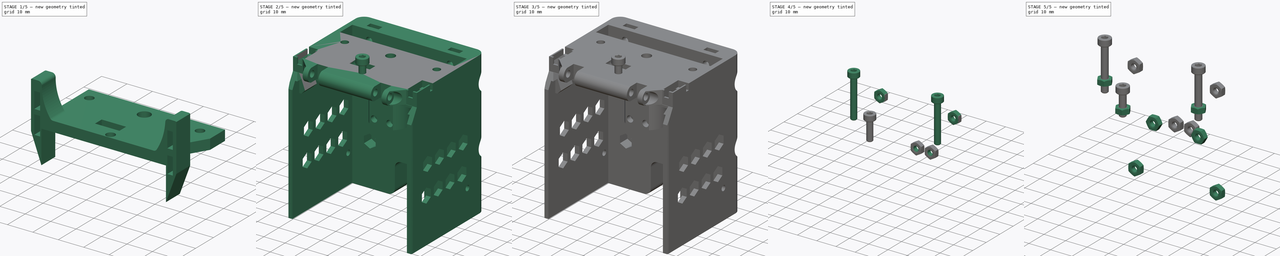
[diagram: build sequence overview — one tinted view per stage of 5, left to right]
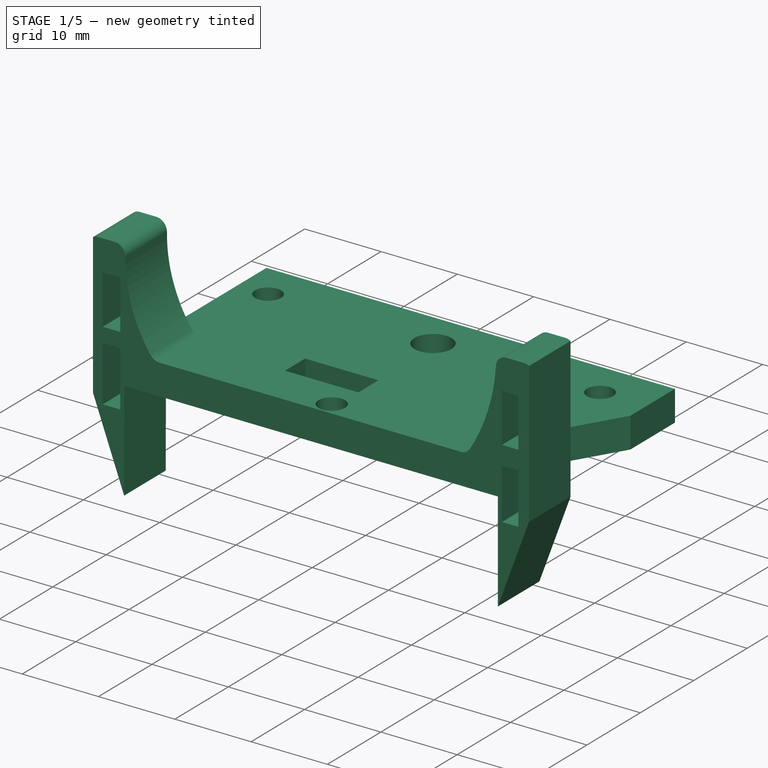
[diagram: stage 1 of 5 — iso view after this stage's code; geometry added in this stage tinted green]
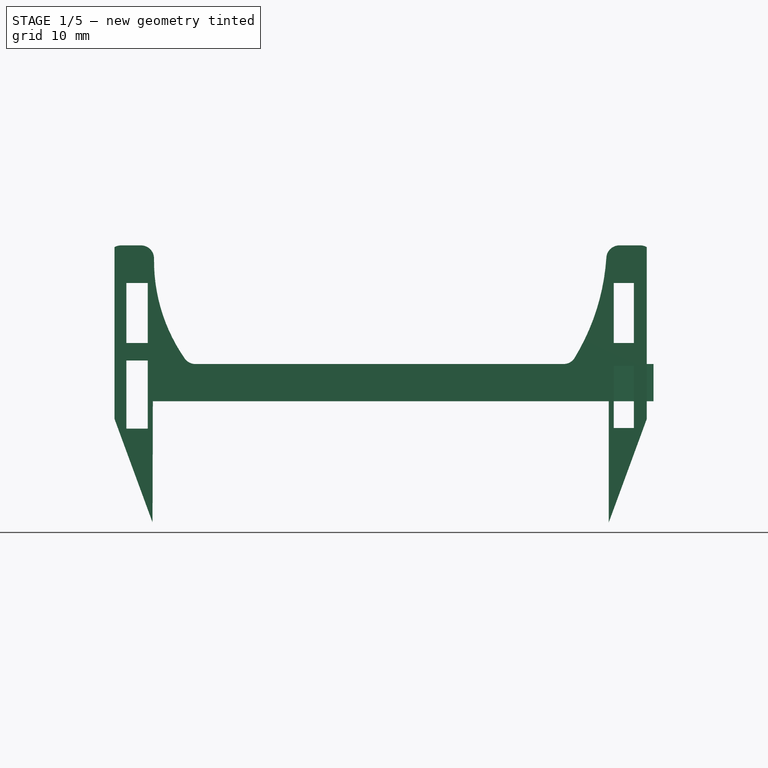
[diagram: stage 1 of 5 — front view after this stage's code; geometry added in this stage tinted green]
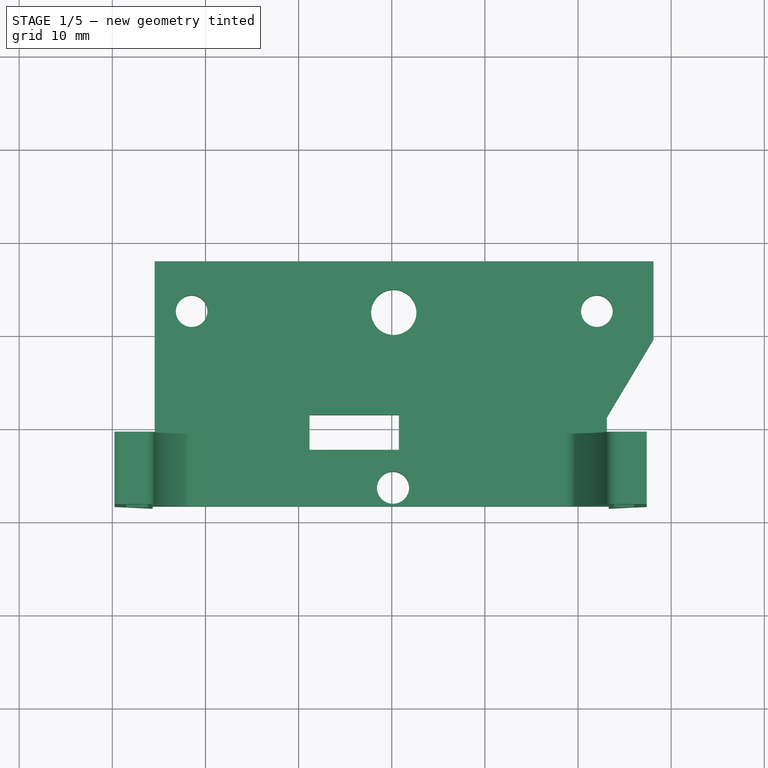
[diagram: stage 1 of 5 — top view after this stage's code; geometry added in this stage tinted green]
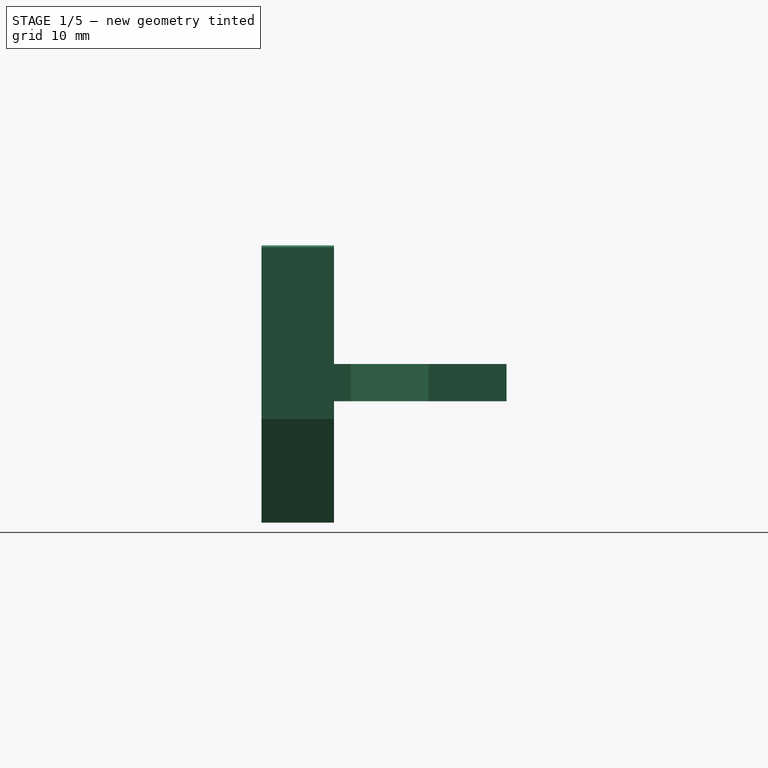
[diagram: stage 1 of 5 — right view after this stage's code; geometry added in this stage tinted green]
FCSTD DOCUMENT  (FreeCAD 1.0R39319 (Git))
Label: Magpie_Toolhead_rev_1_sherpa_mini_mod
License: All rights reserved
LicenseURL: https://en.wikipedia.org/wiki/All_rights_reserved
objects: Part::Feature×53, Part::FeaturePython×14, App::Part×11, PartDesign::Pocket×9, Sketcher::SketchObject×6, PartDesign::Chamfer×4, PartDesign::FeatureBase×2, PartDesign::Pad×2, PartDesign::SubShapeBinder×2, PartDesign::Fillet×2, PartDesign::Body×2
note: 138 computed .brp shape members not serialized (recipe doc carries the construction recipe); baked Part::Feature solids carry a one-line shape summary decoded from their .brp

FEATURE [Part::Feature] Part__Feature  label="shaft^drive_core_sherpa_mini_a3_r17"
  shape: bbox 5 x 5 x 26.6 mm, 23 faces (baked)
FEATURE [Part::Feature] Part__Feature001  label="0.3mm_shim^drive_core_sherpa_mini_a3_r17"
  Placement = pos=(0,0,10.5) rot=(0,0,1;0rad)
  shape: bbox 7 x 7 x 0.3 mm, 14 faces (baked)
FEATURE [Part::Feature] Part__Feature002  label="sherpa_mini_gear_50t_sl_7mm^drive_core_sherpa_mini_a3_r17"
  Placement = pos=(0,0,-10.7) rot=(0,0,1;3.14159rad)
  shape: bbox 34.81 x 38.99 x 7.2 mm, 539 faces (baked)
FEATURE [Part::Feature] Part__Feature003  label="filament_gear^drive_core_sherpa_mini_a3_r17"
  Placement = pos=(0,0,6.5) rot=(0,0,1;0rad)
  shape: bbox 24.52 x 24.23 x 14.5 mm, 464 faces (baked)
FEATURE [Part::Feature] Part__Feature004  label="MR85-2RS^drive_core_sherpa_mini_a3_r17"
  Placement = pos=(0,0,12.05) rot=(0,0,1;0rad)
  shape: bbox 8 x 8 x 2.5 mm, 12 faces (baked)
FEATURE [Part::Feature] Part__Feature005  label="MR85-2RS^drive_core_sherpa_mini_a3_r018"
  Placement = pos=(0,0,12.05) rot=(0,0,1;0rad)
  shape: bbox 5.6 x 5.6 x 2.5 mm, 14 faces (baked)
FEATURE [Part::Feature] Part__Feature006  label="MR85-2RS^drive_core_sherpa_mini_a3_r019"
  Placement = pos=(0,0,12.05) rot=(0,0,1;0rad)
  shape: bbox 7.4 x 7.4 x 2.3 mm, 6 faces (baked)
FEATURE [App::Part] MR85_2RS_drive_core_sherpa_mini_a3_r17  label="MR85-2RS^drive_core_sherpa_mini_a3_r020"
  Group = -> [Part__Feature004,Part__Feature005,Part__Feature006]
  Origin = -> Origin
FEATURE [Part::Feature] Part__Feature007  label="MR85-2RS^drive_core_sherpa_mini_a3_r021"
  Placement = pos=(0,0,-12.05) rot=(0,0,1;0rad)
  shape: bbox 8 x 8 x 2.5 mm, 12 faces (baked)
FEATURE [Part::Feature] Part__Feature008  label="MR85-2RS^drive_core_sherpa_mini_a3_r022"
  Placement = pos=(0,0,-12.05) rot=(0,0,1;0rad)
  shape: bbox 5.6 x 5.6 x 2.5 mm, 14 faces (baked)
FEATURE [Part::Feature] Part__Feature009  label="MR85-2RS^drive_core_sherpa_mini_a3_r023"
  Placement = pos=(0,0,-12.05) rot=(0,0,1;0rad)
  shape: bbox 7.4 x 7.4 x 2.3 mm, 6 faces (baked)
FEATURE [App::Part] MR85_2RS_drive_core_sherpa_mini_a3_r018  label="MR85-2RS^drive_core_sherpa_mini_a3_r024"
  Group = -> [Part__Feature007,Part__Feature008,Part__Feature009]
  Origin = -> Origin001
FEATURE [Part::Feature] Part__Feature010  label="m3_set_screw^drive_core_sherpa_mini_a3_r17"
  Placement = pos=(0,2,3.5) rot=(0,0,1;0rad)
  shape: bbox 3.112 x 2.509 x 3.465 mm, 55 faces (baked)
FEATURE [App::Part] drive_core_sherpa_mini_a3_r17  label="drive_core^sherpa_mini_a3_r17"
  Group = -> [Part__Feature,Part__Feature001,Part__Feature002,Part__Feature003,MR85_2RS_drive_core_sherpa_mini_a3_r17,MR85_2RS_drive_core_sherpa_mini_a3_r018,Part__Feature010]
  Origin = -> Origin002
  Placement = pos=(7.2e-15,-2.4e-15,6.5) rot=(0,0,1;0rad)
FEATURE [Part::Feature] Part__Feature011  label="housing_core_std^housing_sherpa_mini_a3_r17_FDM"
  shape: bbox 51.24 x 37.3 x 18.87 mm, 807 faces (baked)
FEATURE [Part::Feature] Part__Feature012  label="housing_front^housing_sherpa_mini_a3_r17_FDM"
  Placement = pos=(3.3e-15,0,17.5) rot=(0,0,1;0rad)
  shape: bbox 24.8 x 26.5 x 3.9 mm, 101 faces (baked)
FEATURE [Part::Feature] Part__Feature013  label="housing_front_k^housing_sherpa_mini_a3_r17_FDM"
  Placement = pos=(-2e-16,9e-16,17.5) rot=(0,0,1;0rad)
  shape: bbox 24.8 x 34.5 x 3.9 mm, 114 faces (baked)
FEATURE [Part::Feature] Part__Feature014  label="housing_rear_nema14^housing_sherpa_mini_a3_r17_FDM"
  Placement = pos=(7.2e-15,-2.4e-15,-7) rot=(0,0,1;0rad)
  shape: bbox 51.24 x 47.39 x 9.996 mm, 536 faces (baked)
FEATURE [Part::Feature] Part__Feature015  label="idler_arm_short^housing_sherpa_mini_a3_r17_FDM"
  Placement = pos=(-3.5e-15,0,4.25) rot=(0,0,1;0rad)
  shape: bbox 10.7 x 27.26 x 21.68 mm, 349 faces (baked)
FEATURE [Part::Feature] Part__Feature016  label="idler_arm_long^housing_sherpa_mini_a3_r17_FDM"
  Placement = pos=(0,0,4.25) rot=(0,0,1;0rad)
  shape: bbox 10.7 x 38.77 x 21.68 mm, 372 faces (baked)
FEATURE [App::Part] housing_sherpa_mini_a3_r17_FDM  label="housing^sherpa_mini_a3_r17_FDM"
  Group = -> [Part__Feature011,Part__Feature012,Part__Feature013,Part__Feature014,Part__Feature015,Part__Feature016]
  Origin = -> Origin003
FEATURE [Part::Feature] Part__Feature017  label="idler_pin^sherpa_mini_a3_r17"
  Placement = pos=(13.1,-9.8,0.25) rot=(0,0,1;0rad)
  shape: bbox 3 x 3 x 20 mm, 8 faces (baked)
FEATURE [Part::Feature] Part__Feature018  label="idler_gear^idler_gear_assy_sherpa_mini_a3_r17"
  Placement = pos=(0,0,2.4) rot=(0,0,1;0.1848rad)
  shape: bbox 24.52 x 24.41 x 14.5 mm, 457 faces (baked)
FEATURE [Part::Feature] Part__Feature019  label="shaft^idler_gear_assy_sherpa_mini_a3_r17"
  shape: bbox 3 x 3 x 20 mm, 8 faces (baked)
FEATURE [Part::Feature] Part__Feature020  label="needle_bearing^idler_gear_assy_sherpa_mini_a3_r17"
  Placement = pos=(0,0,-4.35) rot=(0,0,1;0.1848rad)
  shape: bbox 1 x 1 x 4.25 mm, 8 faces (baked)
FEATURE [Part::Feature] Part__Feature021  label="needle_bearing^idler_gear_assy_sherpa_mini_a3_r018"
  Placement = pos=(0,0,-4.35) rot=(0,0,1;0.1848rad)
  shape: bbox 4.8 x 4.8 x 6.5 mm, 82 faces (baked)
FEATURE [Part::Feature] Part__Feature022  label="needle_bearing^idler_gear_assy_sherpa_mini_a3_r019"
  Placement = pos=(0,0,-4.35) rot=(0,0,1;0.1848rad)
  shape: bbox 1 x 1 x 4.25 mm, 8 faces (baked)
FEATURE [Part::Feature] Part__Feature023  label="needle_bearing^idler_gear_assy_sherpa_mini_a3_r020"
  Placement = pos=(0,0,-4.35) rot=(0,0,1;0.1848rad)
  shape: bbox 1 x 1 x 4.25 mm, 8 faces (baked)
FEATURE [Part::Feature] Part__Feature024  label="needle_bearing^idler_gear_assy_sherpa_mini_a3_r021"
  Placement = pos=(0,0,-4.35) rot=(0,0,1;0.1848rad)
  shape: bbox 1 x 1 x 4.25 mm, 8 faces (baked)
FEATURE [Part::Feature] Part__Feature025  label="needle_bearing^idler_gear_assy_sherpa_mini_a3_r022"
  Placement = pos=(0,0,-4.35) rot=(0,0,1;0.1848rad)
  shape: bbox 1 x 1 x 4.25 mm, 8 faces (baked)
FEATURE [Part::Feature] Part__Feature026  label="needle_bearing^idler_gear_assy_sherpa_mini_a3_r023"
  Placement = pos=(0,0,-4.35) rot=(0,0,1;0.1848rad)
  shape: bbox 1 x 1 x 4.25 mm, 8 faces (baked)
FEATURE [Part::Feature] Part__Feature027  label="needle_bearing^idler_gear_assy_sherpa_mini_a3_r024"
  Placement = pos=(0,0,-4.35) rot=(0,0,1;0.1848rad)
  shape: bbox 1 x 1 x 4.25 mm, 8 faces (baked)
FEATURE [App::Part] needle_bearing_idler_gear_assy_sherpa_mini_a3_r17  label="needle_bearing^idler_gear_assy_sherpa_mini_a3_r025"
  Group = -> [Part__Feature020,Part__Feature021,Part__Feature022,Part__Feature023,Part__Feature024,Part__Feature025,Part__Feature026,Part__Feature027]
  Origin = -> Origin004
FEATURE [Part::Feature] Part__Feature028  label="needle_bearing^idler_gear_assy_sherpa_mini_a3_r026"
  Placement = pos=(0,0,3.15) rot=(0,0,1;0.1848rad)
  shape: bbox 1 x 1 x 4.25 mm, 8 faces (baked)
FEATURE [Part::Feature] Part__Feature029  label="needle_bearing^idler_gear_assy_sherpa_mini_a3_r027"
  Placement = pos=(0,0,3.15) rot=(0,0,1;0.1848rad)
  shape: bbox 4.8 x 4.8 x 6.5 mm, 82 faces (baked)
FEATURE [Part::Feature] Part__Feature030  label="needle_bearing^idler_gear_assy_sherpa_mini_a3_r028"
  Placement = pos=(0,0,3.15) rot=(0,0,1;0.1848rad)
  shape: bbox 1 x 1 x 4.25 mm, 8 faces (baked)
FEATURE [Part::Feature] Part__Feature031  label="needle_bearing^idler_gear_assy_sherpa_mini_a3_r029"
  Placement = pos=(0,0,3.15) rot=(0,0,1;0.1848rad)
  shape: bbox 1 x 1 x 4.25 mm, 8 faces (baked)
FEATURE [Part::Feature] Part__Feature032  label="needle_bearing^idler_gear_assy_sherpa_mini_a3_r030"
  Placement = pos=(0,0,3.15) rot=(0,0,1;0.1848rad)
  shape: bbox 1 x 1 x 4.25 mm, 8 faces (baked)
FEATURE [Part::Feature] Part__Feature033  label="needle_bearing^idler_gear_assy_sherpa_mini_a3_r031"
  Placement = pos=(0,0,3.15) rot=(0,0,1;0.1848rad)
  shape: bbox 1 x 1 x 4.25 mm, 8 faces (baked)
FEATURE [Part::Feature] Part__Feature034  label="needle_bearing^idler_gear_assy_sherpa_mini_a3_r032"
  Placement = pos=(0,0,3.15) rot=(0,0,1;0.1848rad)
  shape: bbox 1 x 1 x 4.25 mm, 8 faces (baked)
FEATURE [Part::Feature] Part__Feature035  label="needle_bearing^idler_gear_assy_sherpa_mini_a3_r033"
  Placement = pos=(0,0,3.15) rot=(0,0,1;0.1848rad)
  shape: bbox 1 x 1 x 4.25 mm, 8 faces (baked)
FEATURE [App::Part] needle_bearing_idler_gear_assy_sherpa_mini_a3_r018  label="needle_bearing^idler_gear_assy_sherpa_mini_a3_r034"
  Group = -> [Part__Feature028,Part__Feature029,Part__Feature030,Part__Feature031,Part__Feature032,Part__Feature033,Part__Feature034,Part__Feature035]
  Origin = -> Origin005
FEATURE [App::Part] idler_gear_assy_sherpa_mini_a3_r17  label="idler_gear_assy^sherpa_mini_a3_r17"
  Group = -> [Part__Feature018,Part__Feature019,needle_bearing_idler_gear_assy_sherpa_mini_a3_r17,needle_bearing_idler_gear_assy_sherpa_mini_a3_r018]
  Origin = -> Origin006
  Placement = pos=(8.6,0,10.6) rot=(0,0,1;0rad)
FEATURE [Part::Feature] Part__Feature036  label="socket button head screw_iso_ISO 7380 - M3 x 12 - 12N"
  Placement = pos=(26.2203,13.8477,4.65) rot=(0,1,0;1.5708rad)
  shape: bbox 5.7 x 5.7 x 13.97 mm, 27 faces (baked)
FEATURE [Part::Feature] Part__Feature037  label="socket button head screw_iso_ISO 7380 - M3 x 12 - 12N001"
  Placement = pos=(-17.6203,13.8477,4.65) rot=(0,1,0;1.5708rad)
  shape: bbox 5.7 x 5.7 x 13.97 mm, 27 faces (baked)
FEATURE [Part::Feature] Part__Feature038  label="socket button head screw_iso_ISO 7380 - M3 x 16 - 16N"
  Placement = pos=(22.65,-9.8,11.65) rot=(0,1,0;1.5708rad)
  shape: bbox 5.7 x 5.7 x 17.97 mm, 27 faces (baked)
FEATURE [Part::Feature] Part__Feature039  label="socket button head screw_iso_ISO 7380 - M3 x 16 - 16N001"
  Placement = pos=(-14.05,-9.8,11.65) rot=(0,1,0;1.5708rad)
  shape: bbox 5.7 x 5.7 x 17.97 mm, 27 faces (baked)
FEATURE [Part::Feature] Part__Feature040  label="socket button head screw_iso_ISO 7380 - M3 x 8 - 8N"
  Placement = pos=(-1e-16,9,21.9) rot=(0.707107,0,-0.707107;3.14159rad)
  shape: bbox 5.7 x 5.7 x 9.968 mm, 27 faces (baked)
FEATURE [Part::Feature] Part__Feature041  label="socket button head screw_iso_ISO 7380 - M3 x 8 - 8N001"
  Placement = pos=(5.4e-15,-9,21.9) rot=(0.707107,0,-0.707107;3.14159rad)
  shape: bbox 5.7 x 5.7 x 9.968 mm, 27 faces (baked)
FEATURE [Part::Feature] Part__Feature042  label="insert_m3x5x4"
  Placement = pos=(11.2,9.75,10.25) rot=(-0.485903,0.726496,-0.485903;1.88502rad)
  shape: bbox 5.246 x 5.066 x 5.066 mm, 280 faces (baked)
FEATURE [Part::Feature] Part__Feature043  label="insert_m3x5x005"
  Placement = pos=(9e-16,9,17.5) rot=(0,0,-1;0.785905rad)
  shape: bbox 5.062 x 5.062 x 5.246 mm, 280 faces (baked)
FEATURE [Part::Feature] Part__Feature044  label="insert_m3x5x006"
  Placement = pos=(1.8e-15,-9,17.5) rot=(0,0,-1;0.785905rad)
  shape: bbox 5.062 x 5.062 x 5.246 mm, 280 faces (baked)
FEATURE [Part::Feature] Part__Feature045  label="insert_m3x5x007"
  Placement = pos=(22.65,-9.8,-7) rot=(0,1,0;3.14159rad)
  shape: bbox 5.062 x 5.062 x 5.246 mm, 280 faces (baked)
FEATURE [Part::Feature] Part__Feature046  label="insert_m3x5x008"
  Placement = pos=(-14.05,-9.8,-7) rot=(0,1,0;3.14159rad)
  shape: bbox 5.062 x 5.062 x 5.246 mm, 280 faces (baked)
FEATURE [Part::Feature] Part__Feature047  label="thumbscrew^thumbscrew"
  shape: bbox 5 x 5 x 23.01 mm, 97 faces (baked)
FEATURE [Part::Feature] Part__Feature048  label="thumbscrew^thumbscrew001"
  shape: bbox 12.15 x 12.15 x 3.677 mm, 2617 faces (baked)
FEATURE [App::Part] thumbscrew_thumbscrew  label="thumbscrew^thumbscrew002"
  Group = -> [Part__Feature047,Part__Feature048]
  Origin = -> Origin007
FEATURE [Part::Feature] Part__Feature049  label="spring^thumbscrew"
  Placement = pos=(1.7e-15,0,16) rot=(0,0,1;0rad)
  shape: bbox 7.392 x 7.388 x 14 mm, 6 faces (baked)
FEATURE [App::Part] thumbscrew
  Group = -> [thumbscrew_thumbscrew,Part__Feature049]
  Origin = -> Origin008
  Placement = pos=(33.3,9.75,10.25) rot=(0,-1,0;1.5708rad)
FEATURE [Part::Feature] Part__Feature050  label="NEMA14_10t^sherpa_mini_a3_r17"
  Placement = pos=(4.3,-11.6523,-1) rot=(0,0,1;0rad)
  shape: bbox 50.9 x 36.5 x 23.5 mm, 227 faces (baked)
FEATURE [App::Part] sherpa_mini_a3_r17
  Group = -> [drive_core_sherpa_mini_a3_r17,housing_sherpa_mini_a3_r17_FDM,Part__Feature017,idler_gear_assy_sherpa_mini_a3_r17,Part__Feature036,Part__Feature037,Part__Feature038,Part__Feature039,Part__Feature040,Part__Feature041,Part__Feature042,Part__Feature043,Part__Feature044,Part__Feature045,Part__Feature046,thumbscrew,Part__Feature050]
  Origin = -> Origin009
  Placement = pos=(-4.0319,28.4276,39.116) rot=(1,0,0;1.5708rad)
FEATURE [Part::Feature] Part__Feature053  label="Toolhead_Belt_connector_002"
  shape: bbox 57.14 x 26.29 x 29.76 mm, 43 faces (baked)
FEATURE [Part::Feature] Part__Feature054  label="X Carriage Front001"
  shape: bbox 58.64 x 53.45 x 67.67 mm, 322 faces (baked)
FEATURE [PartDesign::FeatureBase] BaseFeature
  BaseFeature = -> Part__Feature053
  Suppressed = false
FEATURE [PartDesign::Pad] Pad
  BaseFeature = -> BaseFeature
  Direction = (1,0,0)
  Length = 5.01
  Length2 = 10
  Profile = -> BaseFeature [Face34]
  Refine = true
  Suppressed = false
  Type = 0
FEATURE [Sketcher::SketchObject] Sketch
  ArcFitTolerance = 1e-06
  AttachmentSupport = -> [Pad]
  ExternalGeometry = -> [Pad]
  FullyConstrained = false
  MakeInternals = false
  MapMode = 5
  Placement = pos=(28.1006,0,0) rot=(0.57735,0.57735,0.57735;2.0944rad)
  sketch-geometry (4):
    g0: LineSegment StartX=9.25977 StartY=21.6182 StartZ=0 EndX=11.2397 EndY=21.6182 EndZ=0
    g1: LineSegment StartX=11.2397 StartY=21.6182 StartZ=0 EndX=11.2397 EndY=25.8153 EndZ=0
    g2: LineSegment StartX=11.2397 StartY=25.8153 StartZ=0 EndX=9.25977 EndY=25.8153 EndZ=0
    g3: LineSegment StartX=9.25977 StartY=25.8153 StartZ=0 EndX=9.25977 EndY=21.6182 EndZ=0
  constraints (9):
    c: Coincident(g0,g1)
    c: Coincident(g1,g2)
    c: Coincident(g2,g3)
    c: Coincident(g3,g0)
    c: Horizontal(g0)
    c: Horizontal(g2)
    c: Vertical(g1)
    c: Vertical(g3)
    c: Coincident(g0,g-4)
FEATURE [PartDesign::Pocket] Pocket
  BaseFeature = -> Pad
  Direction = (-1,0,0)
  Length = 5
  Length2 = 5
  Profile = -> Sketch
  ReferenceAxis = -> Sketch [N_Axis]
  Refine = true
  Suppressed = false
  Type = 0
FEATURE [PartDesign::Pad] Pad001
  BaseFeature = -> Pocket
  Direction = (0,-1,0)
  Length = 0.18
  Length2 = 10
  Profile = -> Pocket [Face12]
  Refine = true
  Suppressed = false
  Type = 0
FEATURE [Sketcher::SketchObject] Sketch001
  ArcFitTolerance = 1e-06
  AttachmentSupport = -> [Pad001]
  ExternalGeometry = -> [Pad001]
  FullyConstrained = false
  MakeInternals = false
  MapMode = 5
  Placement = pos=(0,0,25.6182) rot=(0,0,1;0rad)
  sketch-geometry (5):
    g0: LineSegment StartX=23.1006 StartY=11.0597 StartZ=0 EndX=28.1006 EndY=19.4167 EndZ=0
    g1: LineSegment StartX=28.1006 StartY=19.4167 StartZ=0 EndX=42.6622 EndY=21.4797 EndZ=0
    g2: LineSegment StartX=23.1006 StartY=11.0597 StartZ=0 EndX=28.0069 EndY=10.0531 EndZ=0
    g3: LineSegment StartX=35.888 StartY=11.3456 StartZ=0 EndX=28.0069 EndY=10.0531 EndZ=0
    g4: LineSegment StartX=35.888 StartY=11.3456 StartZ=0 EndX=42.6622 EndY=21.4797 EndZ=0
  constraints (7):
    c: Coincident(g0,g-3)
    c: Symmetric(g-4,g-4,g0)
    c: Coincident(g1,g0)
    c: Coincident(g2,g0)
    c: Coincident(g3,g2)
    c: Coincident(g4,g3)
    c: Coincident(g4,g1)
FEATURE [PartDesign::Pocket] Pocket001
  BaseFeature = -> Pad001
  Direction = (0,0,-1)
  Length = 5
  Length2 = 5
  Profile = -> Sketch001
  ReferenceAxis = -> Sketch001 [N_Axis]
  Refine = true
  Suppressed = false
  Type = 0
FEATURE [Sketcher::SketchObject] Sketch002
  ArcFitTolerance = 1e-06
  AttachmentSupport = -> [Pocket001]
  FullyConstrained = false
  MakeInternals = false
  MapMode = 5
  Placement = pos=(0,0,25.6182) rot=(0,0,1;0rad)
  sketch-geometry (4):
    g0: LineSegment StartX=-8.83638 StartY=11.2887 StartZ=0 EndX=-8.83638 EndY=7.5284 EndZ=0
    g1: LineSegment StartX=-8.83638 StartY=7.5284 StartZ=0 EndX=0.770757 EndY=7.5284 EndZ=0
    g2: LineSegment StartX=0.770757 StartY=7.5284 StartZ=0 EndX=0.770757 EndY=11.2887 EndZ=0
    g3: LineSegment StartX=0.770757 StartY=11.2887 StartZ=0 EndX=-8.83638 EndY=11.2887 EndZ=0
  constraints (8):
    c: Coincident(g0,g1)
    c: Coincident(g1,g2)
    c: Coincident(g2,g3)
    c: Coincident(g3,g0)
    c: Vertical(g0)
    c: Vertical(g2)
    c: Horizontal(g1)
    c: Horizontal(g3)
FEATURE [PartDesign::Pocket] Pocket002
  BaseFeature = -> Pocket001
  Direction = (0,0,-1)
  Length = 5
  Length2 = 5
  Profile = -> Sketch002
  ReferenceAxis = -> Sketch002 [N_Axis]
  Refine = true
  Suppressed = false
  Type = 0
FEATURE [Sketcher::SketchObject] Sketch004
  ArcFitTolerance = 1e-06
  AttachmentSupport = -> [Pocket002]
  FullyConstrained = true
  MakeInternals = false
  MapMode = 5
  Placement = pos=(0,0,21.6182) rot=(1,0,0;3.14159rad)
  sketch-geometry (2):
    g0: Circle CenterX=-21.487 CenterY=-22.4193 CenterZ=0 NormalX=0 NormalY=0 NormalZ=1 AngleXU=0 Radius=1.7
    g1: Circle CenterX=22.0216 CenterY=-22.4238 CenterZ=0 NormalX=0 NormalY=0 NormalZ=1 AngleXU=0 Radius=1.7
  constraints (6):
    c: Diameter(g1) = 3.4
    c: Diameter(g0) = 3.4
    c: DistanceX(g0) = -21.487
    c: DistanceY(g0) = -22.4193
    c: DistanceX(g1) = 22.0216
    c: DistanceY(g1) = -22.4238
FEATURE [PartDesign::Pocket] Pocket004
  BaseFeature = -> Pocket002
  Direction = (0,0,1)
  Length = 5
  Length2 = 5
  Profile = -> Sketch004
  ReferenceAxis = -> Sketch004 [N_Axis]
  Refine = true
  Suppressed = false
  Type = 0
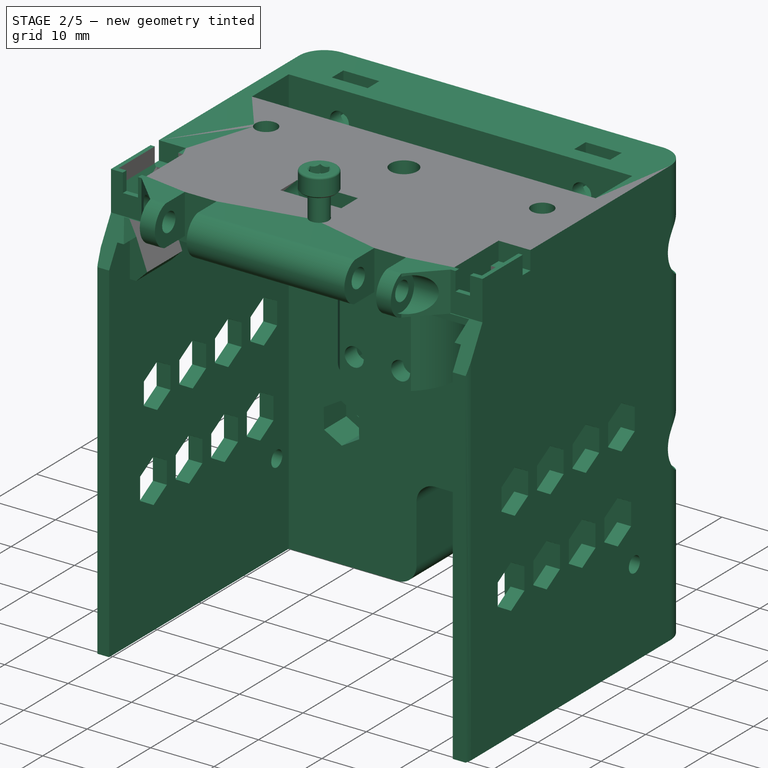
[diagram: stage 2 of 5 — iso view after this stage's code; geometry added in this stage tinted green]
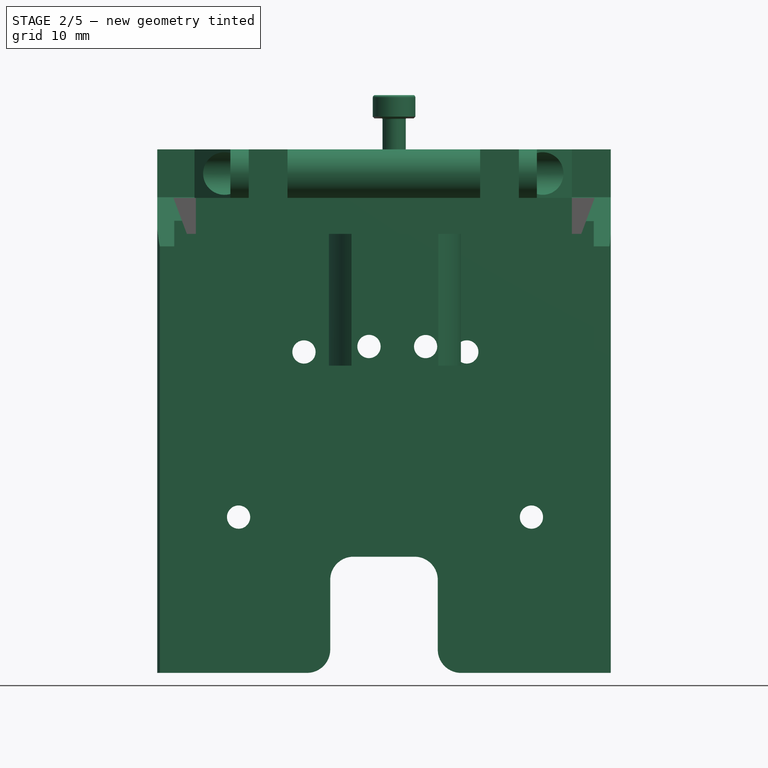
[diagram: stage 2 of 5 — front view after this stage's code; geometry added in this stage tinted green]
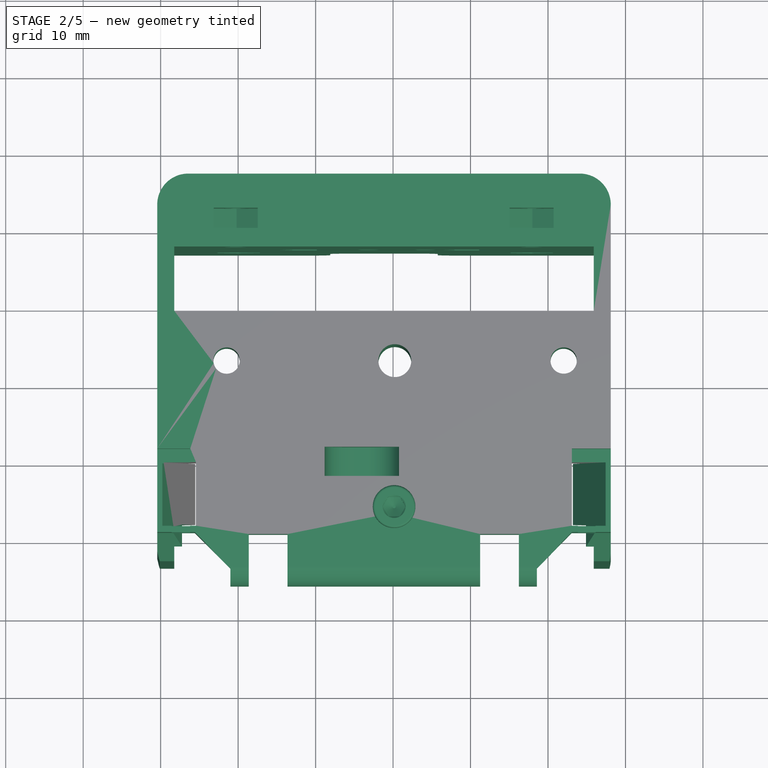
[diagram: stage 2 of 5 — top view after this stage's code; geometry added in this stage tinted green]
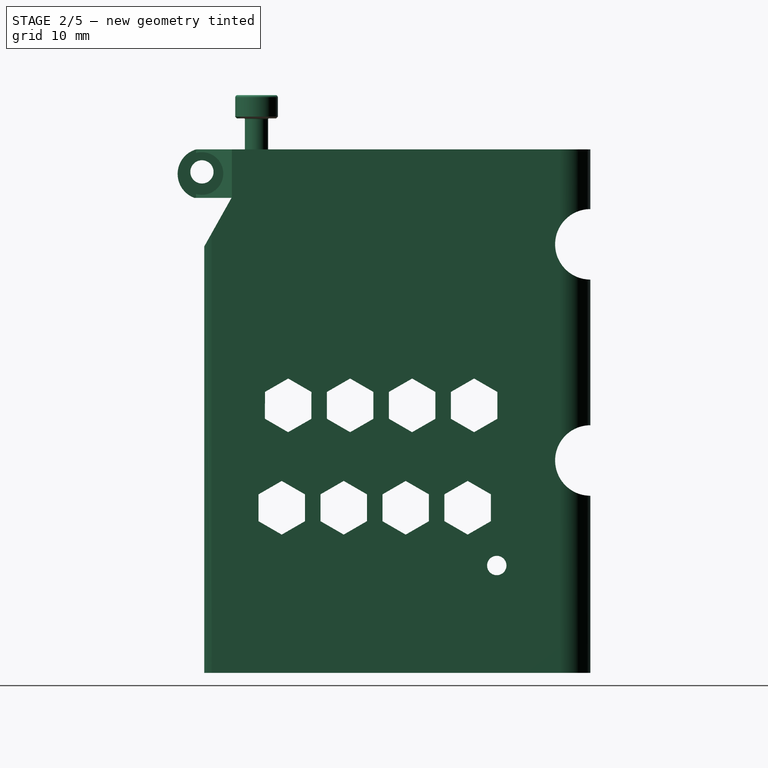
[diagram: stage 2 of 5 — right view after this stage's code; geometry added in this stage tinted green]
FEATURE [PartDesign::FeatureBase] BaseFeature001
  BaseFeature = -> Part__Feature054
  Suppressed = false
FEATURE [PartDesign::SubShapeBinder] Binder
  BindCopyOnChange = 0
  BindMode = 0
  ClaimChildren = false
  Context = -> Body [Binder.]
  Fuse = false
  MakeFace = true
  OffsetFill = false
  OffsetIntersection = false
  OffsetJoinType = 0
  OffsetOpenResult = false
  PartialLoad = false
  Refine = true
  Relative = true
  Support = -> [Pocket002[Edge84,Edge81,Edge82,Edge83]]
  _Version = 2
FEATURE [PartDesign::Pocket] Pocket003
  BaseFeature = -> BaseFeature001
  Direction = (0,0,-1)
  Length = 8.5
  Length2 = 5
  Profile = -> Binder
  Refine = true
  Suppressed = false
  Type = 0
FEATURE [PartDesign::Fillet] Fillet
  Base = -> Pocket003 [Edge700]
  BaseFeature = -> Pocket003
  Radius = 4
  Refine = true
  SupportTransform = false
  Suppressed = false
  UseAllEdges = false
FEATURE [PartDesign::Fillet] Fillet001
  Base = -> Fillet [Edge58]
  BaseFeature = -> Fillet
  Radius = 4
  Refine = true
  SupportTransform = false
  Suppressed = false
  UseAllEdges = false
FEATURE [PartDesign::Body] Body  label="Belt_connector"
  AllowCompound = false
  BaseFeature = -> Part__Feature053
  Group = -> [BaseFeature,Pad,Sketch,Pocket,Pad001,Sketch001,Pocket001,Sketch002,Pocket002,Sketch004,Pocket004]
  Origin = -> Origin010
  Tip = -> Pocket004
FEATURE [PartDesign::SubShapeBinder] Binder001
  BindCopyOnChange = 0
  BindMode = 0
  ClaimChildren = false
  Context = -> Body001 [Binder001.]
  Fuse = false
  MakeFace = true
  OffsetFill = false
  OffsetIntersection = false
  OffsetJoinType = 0
  OffsetOpenResult = false
  PartialLoad = false
  Refine = true
  Relative = true
  Support = -> [Body[Pocket004.Edge90,Pocket004.Edge88]]
  _Version = 2
FEATURE [PartDesign::Pocket] Pocket005
  BaseFeature = -> Fillet001
  Direction = (0,0,-1)
  Length = 29
  Length2 = 5
  Profile = -> Binder001
  Refine = true
  Suppressed = false
  Type = 0
FEATURE [PartDesign::Body] Body001  label="Mid_body"
  AllowCompound = false
  BaseFeature = -> Part__Feature054
  Group = -> [BaseFeature001,Binder,Pocket003,Fillet,Fillet001,Binder001,Pocket005,Sketch005,Pocket006,Pocket007,Chamfer,Chamfer001,Chamfer002,Sketch006,Pocket008,Chamfer003]
  Origin = -> Origin011
  Tip = -> Chamfer003
FEATURE [App::Part] Part  label="Fasteners"
  Group = -> [Nut,Nut001,Nut002,Nut003,Nut004,Nut005,Nut006,Nut007,Nut008,Nut009,Nut010,Screw,Screw001]
  Origin = -> Origin012
FEATURE [Part::FeaturePython] Screw002  label="M3x10-Screw"  # WARN: FeaturePython — macro-defined, semantics opaque (R4)
  BaseObject = -> Body [Pocket004.Edge83]
  Diameter = 4
  Invert = false
  LeftHanded = false
  Length = 3
  LengthCustom = 10
  MatchOuter = false
  OffsetAngle = 0
  Placement = pos=(0.133973,3.46796,25.6182) rot=(0,0,1;0rad)
  Thread = false
  Type = 75
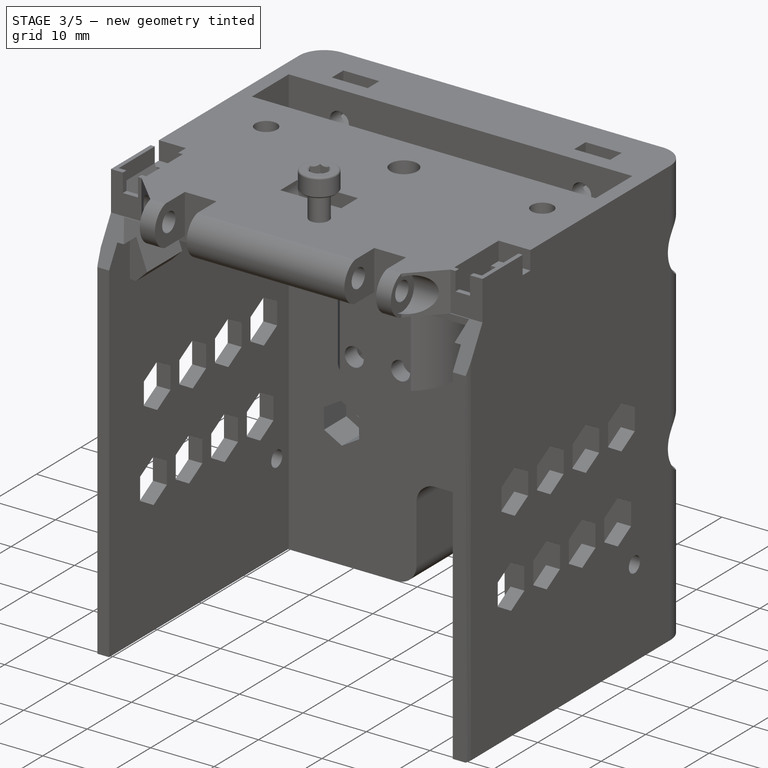
[diagram: stage 3 of 5 — iso view after this stage's code; geometry added in this stage tinted green]
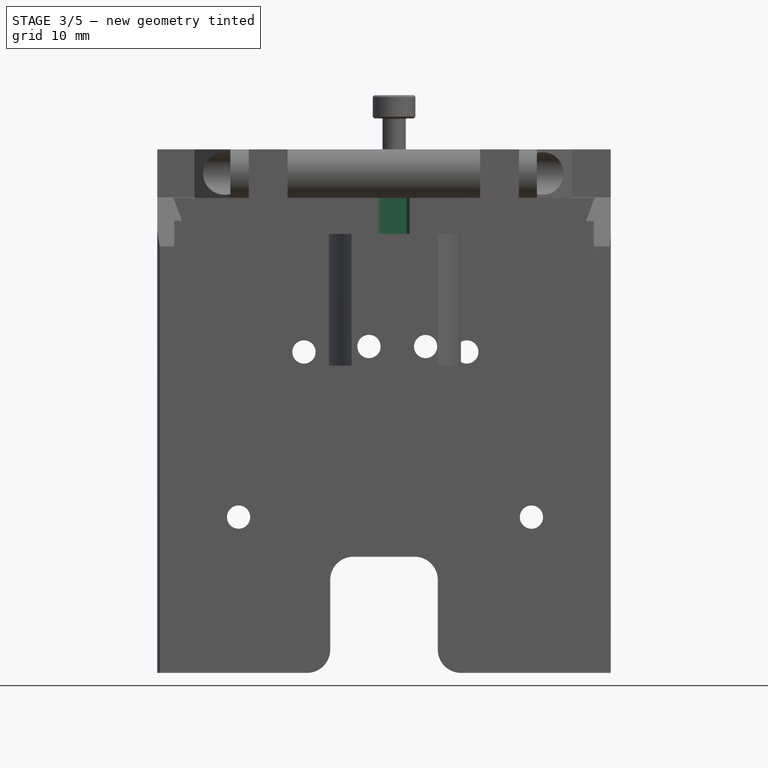
[diagram: stage 3 of 5 — front view after this stage's code; geometry added in this stage tinted green]
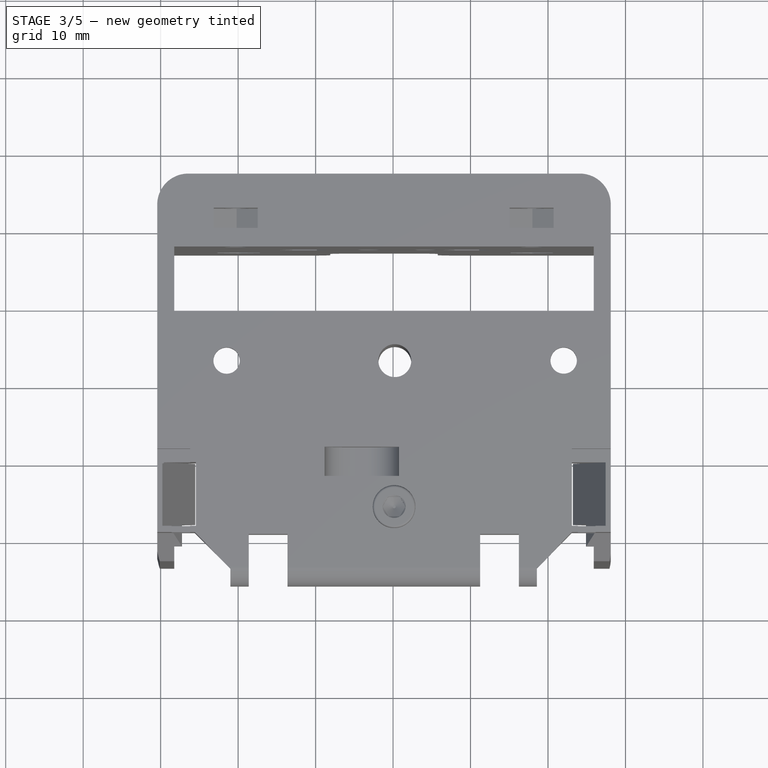
[diagram: stage 3 of 5 — top view after this stage's code; geometry added in this stage tinted green]
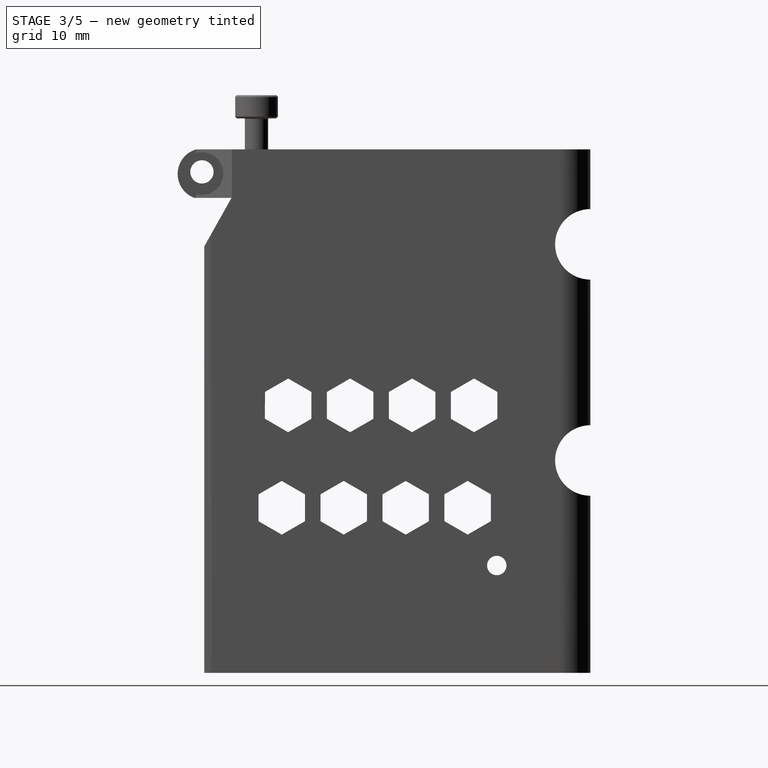
[diagram: stage 3 of 5 — right view after this stage's code; geometry added in this stage tinted green]
FEATURE [Sketcher::SketchObject] Sketch005
  ArcFitTolerance = 1e-06
  AttachmentSupport = -> [Pocket005]
  ExternalGeometry = -> [Pocket005]
  FullyConstrained = false
  MakeInternals = false
  MapMode = 5
  Placement = pos=(0,0,10.7082) rot=(1,0,0;3.14159rad)
  sketch-geometry (14):
    g0: LineSegment StartX=-24.702 StartY=-22.4193 StartZ=0 EndX=-23.0945 EndY=-25.2035 EndZ=0
    g1: LineSegment StartX=-23.0945 StartY=-25.2035 StartZ=0 EndX=-19.8795 EndY=-25.2035 EndZ=0
    g2: LineSegment StartX=-19.8795 StartY=-25.2035 StartZ=0 EndX=-18.272 EndY=-22.4193 EndZ=0
    g3: LineSegment StartX=-18.272 StartY=-22.4193 StartZ=0 EndX=-19.8795 EndY=-19.635 EndZ=0
    g4: LineSegment StartX=-19.8795 StartY=-19.635 StartZ=0 EndX=-23.0945 EndY=-19.635 EndZ=0
    g5: LineSegment StartX=-23.0945 StartY=-19.635 StartZ=0 EndX=-24.702 EndY=-22.4193 EndZ=0
    g6: Circle [constr] CenterX=-21.487 CenterY=-22.4193 CenterZ=0 NormalX=0 NormalY=0 NormalZ=1 AngleXU=0 Radius=3.215
    g7: LineSegment StartX=23.5366 StartY=-19.7998 StartZ=0 EndX=20.5066 EndY=-19.7998 EndZ=0
    g8: LineSegment StartX=20.5066 StartY=-19.7998 StartZ=0 EndX=18.9916 EndY=-22.4238 EndZ=0
    g9: LineSegment StartX=18.9916 StartY=-22.4238 StartZ=0 EndX=20.5066 EndY=-25.0479 EndZ=0
    g10: LineSegment StartX=20.5066 StartY=-25.0479 StartZ=0 EndX=23.5366 EndY=-25.0479 EndZ=0
    g11: LineSegment StartX=23.5366 StartY=-25.0479 StartZ=0 EndX=25.0516 EndY=-22.4238 EndZ=0
    g12: LineSegment StartX=25.0516 StartY=-22.4238 StartZ=0 EndX=23.5366 EndY=-19.7998 EndZ=0
    g13: Circle [constr] CenterX=22.0216 CenterY=-22.4238 CenterZ=0 NormalX=0 NormalY=0 NormalZ=1 AngleXU=0 Radius=3.03
  constraints (30):
    c: Coincident(g0,g1)
    c: Coincident(g1,g2)
    c: Coincident(g2,g3)
    c: Coincident(g3,g4)
    c: Coincident(g4,g5)
    c: Coincident(g5,g0)
    c: Equal(g0, g1-g5) x5
    c: PointOnObject(g0,g6)
    c: PointOnObject(g1,g6)
    c: PointOnObject(g2,g6)
    c: PointOnObject(g3,g6)
    c: PointOnObject(g4,g6)
    c: PointOnObject(g5,g6)
    c: Radius(g6) = 3.215
    c: Coincident(g6,g-3)
    c: Coincident(g7,g8)
    c: Coincident(g8,g9)
    c: Coincident(g9,g10)
    c: Coincident(g10,g11)
    c: Coincident(g11,g12)
    c: Coincident(g12,g7)
    c: Equal(g7, g8-g12) x5
    c: PointOnObject(g7,g13)
    c: PointOnObject(g8,g13)
    c: PointOnObject(g9,g13)
    c: PointOnObject(g10,g13)
    c: PointOnObject(g11,g13)
    c: PointOnObject(g12,g13)
    c: Radius(g13) = 3.03
    c: Coincident(g13,g-4)
FEATURE [PartDesign::Pocket] Pocket006
  BaseFeature = -> Pocket005
  Direction = (0,0,1)
  Length = 3
  Length2 = 5
  Profile = -> Sketch005
  ReferenceAxis = -> Sketch005 [N_Axis]
  Refine = true
  Suppressed = false
  Type = 0
FEATURE [PartDesign::Pocket] Pocket007
  BaseFeature = -> Pocket006
  Direction = (0,0,1)
  Length = 5
  Length2 = 5
  Profile = -> Pocket006 [Face210,Face216]
  Refine = true
  Suppressed = false
  Type = 0
FEATURE [PartDesign::Chamfer] Chamfer
  Angle = 45
  Base = -> Pocket007 [Edge599,Edge600,Edge601,Edge602,Edge604,Edge603]
  BaseFeature = -> Pocket007
  ChamferType = 0
  FlipDirection = false
  Refine = true
  Size = 0.5
  Size2 = 1
  SupportTransform = false
  Suppressed = false
  UseAllEdges = false
FEATURE [PartDesign::Chamfer] Chamfer001
  Angle = 45
  Base = -> Chamfer [Edge21]
  BaseFeature = -> Chamfer
  ChamferType = 0
  FlipDirection = false
  Refine = true
  Size = 0.5
  Size2 = 1
  SupportTransform = false
  Suppressed = false
  UseAllEdges = false
FEATURE [PartDesign::Chamfer] Chamfer002
  Angle = 45
  Base = -> Chamfer001 [Edge7,Edge8,Edge6,Edge4,Edge2]
  BaseFeature = -> Chamfer001
  ChamferType = 0
  FlipDirection = false
  Refine = true
  Size = 0.5
  Size2 = 1
  SupportTransform = false
  Suppressed = false
  UseAllEdges = false
FEATURE [Sketcher::SketchObject] Sketch006
  ArcFitTolerance = 1e-06
  AttachmentOffset = pos=(0,-1,0) rot=(0,0,1;0rad)
  AttachmentSupport = -> [Chamfer002]
  FullyConstrained = false
  MakeInternals = false
  MapMode = 5
  Placement = pos=(0,1,10.7082) rot=(1,0,0;3.14159rad)
  sketch-geometry (4):
    g0: LineSegment StartX=-3.0857 StartY=-3.52336 StartZ=0 EndX=-1.4975 EndY=-6.31936 EndZ=0
    g1: LineSegment StartX=1.73596 StartY=-6.31936 StartZ=0 EndX=-1.4975 EndY=-6.31936 EndZ=0
    g2: LineSegment StartX=1.73596 StartY=-6.31936 StartZ=0 EndX=3.34319 EndY=-3.52336 EndZ=0
    g3: LineSegment StartX=-3.0857 StartY=-3.52336 StartZ=0 EndX=3.34319 EndY=-3.52336 EndZ=0
  constraints (6):
    c: Coincident(g1,g0)
    c: Horizontal(g1)
    c: Coincident(g2,g1)
    c: Coincident(g3,g0)
    c: Coincident(g3,g2)
    c: Horizontal(g3)
FEATURE [PartDesign::Pocket] Pocket008
  BaseFeature = -> Chamfer002
  Direction = (0,0,1)
  Length = 0
  Length2 = 5
  Profile = -> Sketch006
  ReferenceAxis = -> Sketch006 [N_Axis]
  Refine = true
  Suppressed = false
  Type = 3
  UpToFace = -> Chamfer002 [Face106]
FEATURE [PartDesign::Chamfer] Chamfer003
  Angle = 45
  Base = -> Pocket008 [Edge1,Edge5,Edge10,Edge13,Edge17,Edge1016]
  BaseFeature = -> Pocket008
  ChamferType = 0
  FlipDirection = false
  Refine = true
  Size = 0.5
  Size2 = 1
  SupportTransform = false
  Suppressed = false
  UseAllEdges = false
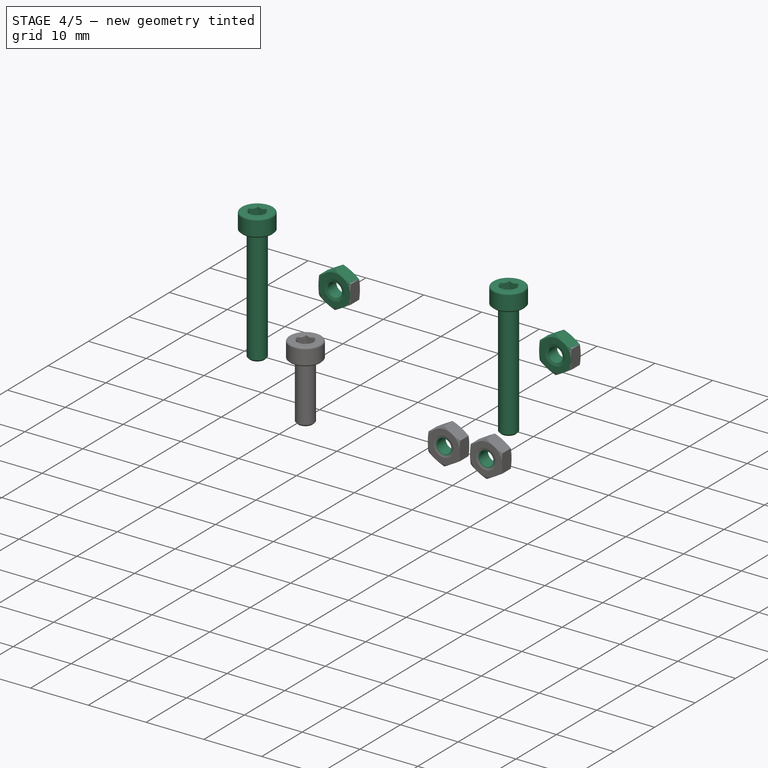
[diagram: stage 4 of 5 — iso view after this stage's code; geometry added in this stage tinted green]
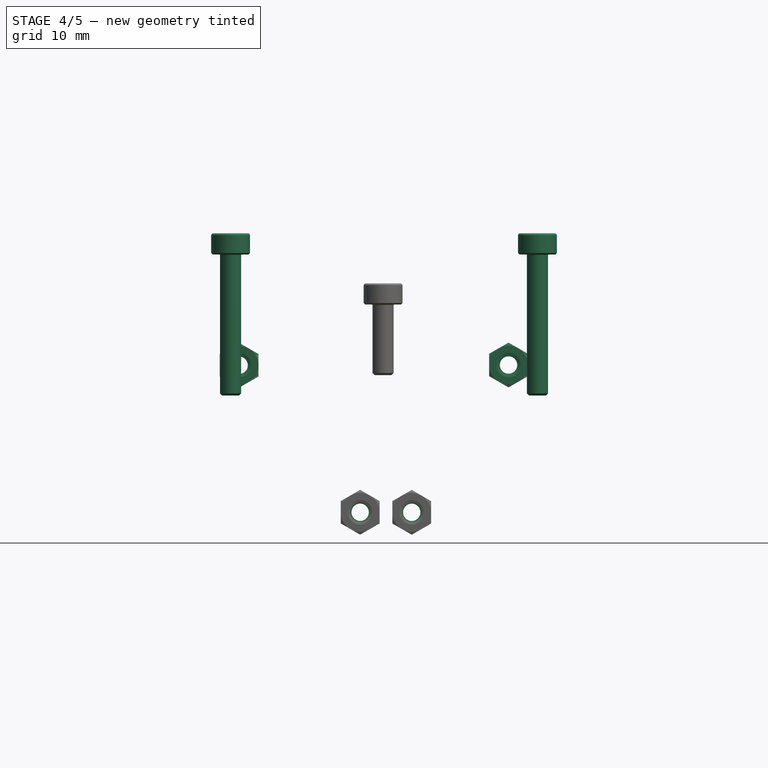
[diagram: stage 4 of 5 — front view after this stage's code; geometry added in this stage tinted green]
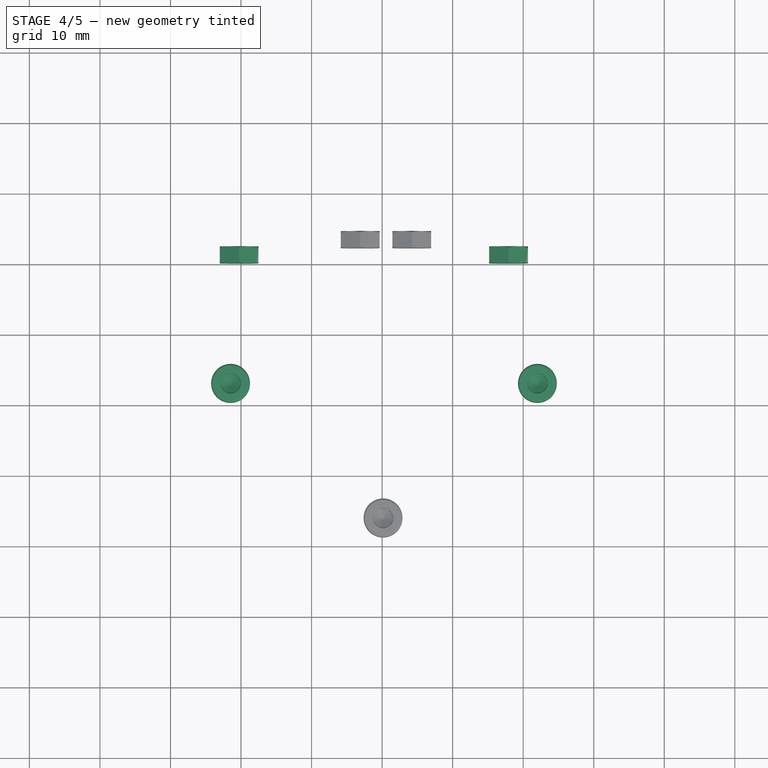
[diagram: stage 4 of 5 — top view after this stage's code; geometry added in this stage tinted green]
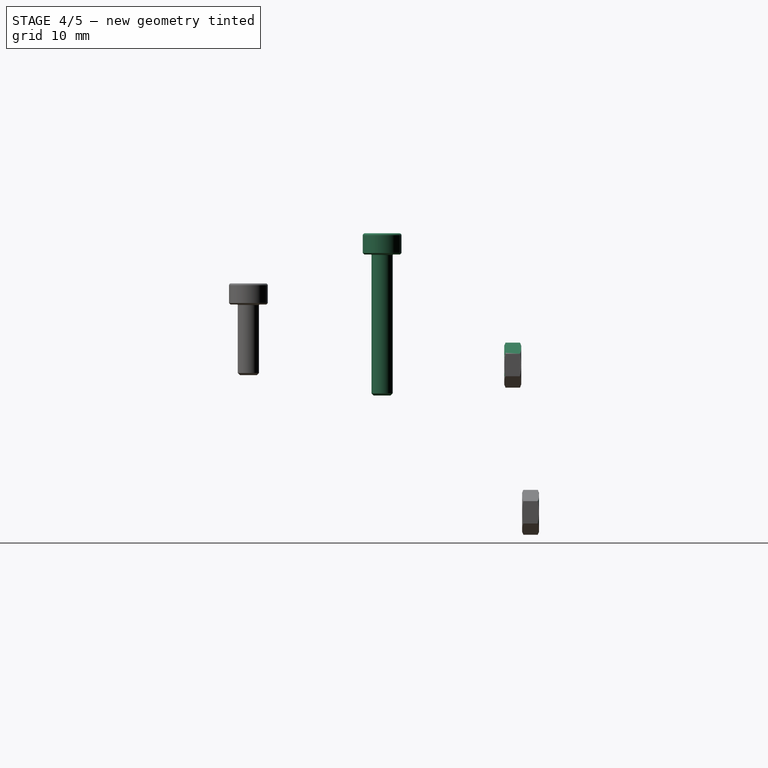
[diagram: stage 4 of 5 — right view after this stage's code; geometry added in this stage tinted green]
FEATURE [Part::FeaturePython] Nut007  label="M3-Nut266"  # WARN: FeaturePython — macro-defined, semantics opaque (R4)
  BaseObject = -> Body001 [Pocket006.Edge880]
  Diameter = 4
  Invert = false
  LeftHanded = false
  MatchOuter = false
  OffsetAngle = 30
  Placement = pos=(-3.10881,42.2684,-3.82948) rot=(-0.935113,0.250563,0.250563;1.63783rad)
  Thread = false
  Type = 31
FEATURE [Part::FeaturePython] Nut008  label="M3-Nut267"  # WARN: FeaturePython — macro-defined, semantics opaque (R4)
  BaseObject = -> Body001 [Pocket006.Edge878]
  Diameter = 4
  Invert = false
  LeftHanded = false
  MatchOuter = false
  OffsetAngle = 30
  Placement = pos=(4.20029,42.2684,-3.83799) rot=(-0.935113,0.250563,0.250563;1.63783rad)
  Thread = false
  Type = 31
FEATURE [Part::FeaturePython] Nut009  label="M3-Nut268"  # WARN: FeaturePython — macro-defined, semantics opaque (R4)
  BaseObject = -> Body001 [Pocket006.Edge309]
  Diameter = 4
  Invert = false
  LeftHanded = false
  MatchOuter = false
  OffsetAngle = 30
  Placement = pos=(-20.268,42.143,17.01) rot=(0.935113,-0.250563,0.250563;1.63783rad)
  Thread = false
  Type = 31
FEATURE [Part::FeaturePython] Nut010  label="M3-Nut269"  # WARN: FeaturePython — macro-defined, semantics opaque (R4)
  BaseObject = -> Body001 [Pocket006.Edge504]
  Diameter = 4
  Invert = false
  LeftHanded = false
  MatchOuter = false
  OffsetAngle = 30
  Placement = pos=(17.9239,42.143,17.0444) rot=(0.935113,-0.250563,0.250563;1.63783rad)
  Thread = false
  Type = 31
FEATURE [Part::FeaturePython] Screw  label="M3x20-Screw001"  # WARN: FeaturePython — macro-defined, semantics opaque (R4)
  BaseObject = -> sherpa_mini_a3_r17 [housing_sherpa_mini_a3_r17_FDM.Part__Feature011.Edge1053]
  Diameter = 4
  Invert = false
  LeftHanded = false
  Length = 7
  LengthCustom = 20
  MatchOuter = false
  OffsetAngle = 0
  Placement = pos=(22.0181,22.4276,32.716) rot=(0,0,1;0rad)
  Thread = false
  Type = 75
FEATURE [Part::FeaturePython] Screw001  label="M3x20-Screw"  # WARN: FeaturePython — macro-defined, semantics opaque (R4)
  BaseObject = -> sherpa_mini_a3_r17 [housing_sherpa_mini_a3_r17_FDM.Part__Feature011.Edge122]
  Diameter = 4
  Invert = false
  LeftHanded = false
  Length = 7
  LengthCustom = 20
  MatchOuter = false
  OffsetAngle = 0
  Placement = pos=(-21.4819,22.4276,32.716) rot=(0,0,1;0rad)
  Thread = false
  Type = 75
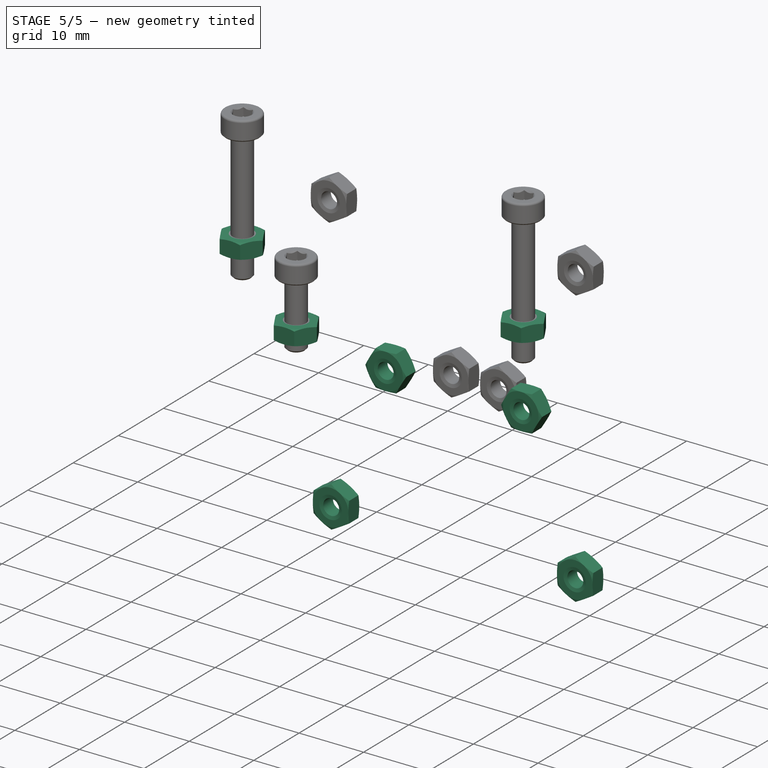
[diagram: stage 5 of 5 — iso view after this stage's code; geometry added in this stage tinted green]
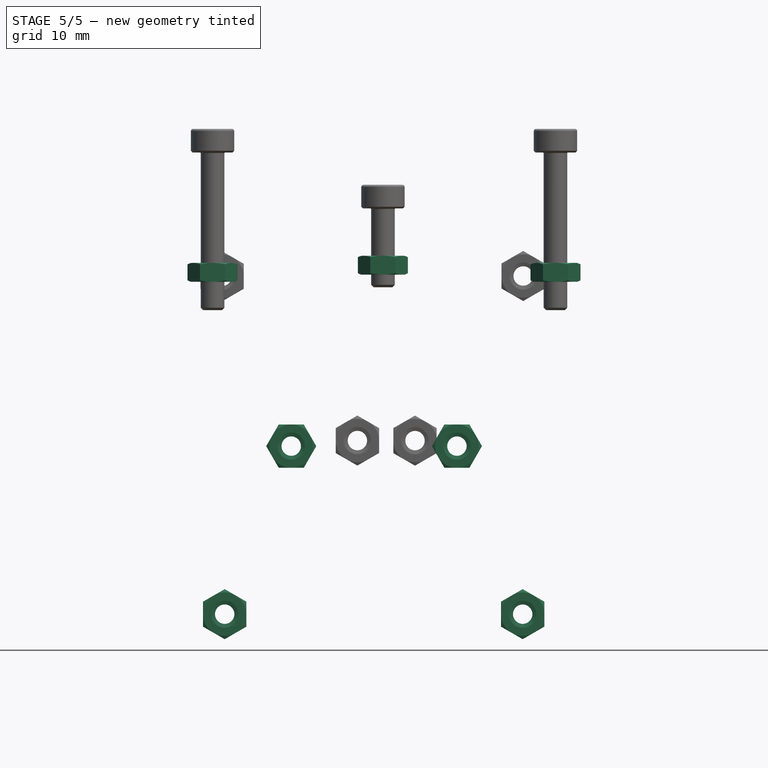
[diagram: stage 5 of 5 — front view after this stage's code; geometry added in this stage tinted green]
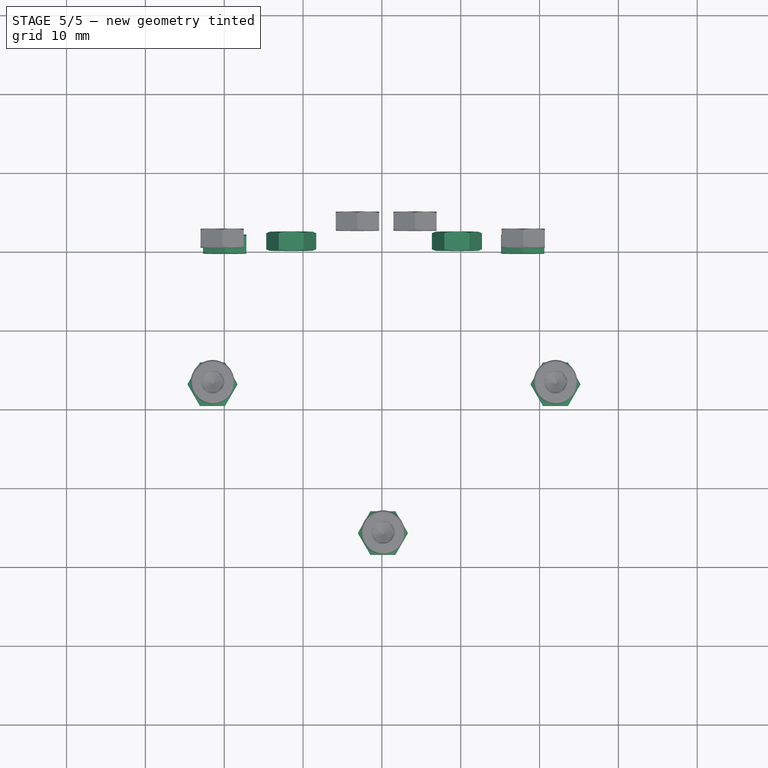
[diagram: stage 5 of 5 — top view after this stage's code; geometry added in this stage tinted green]
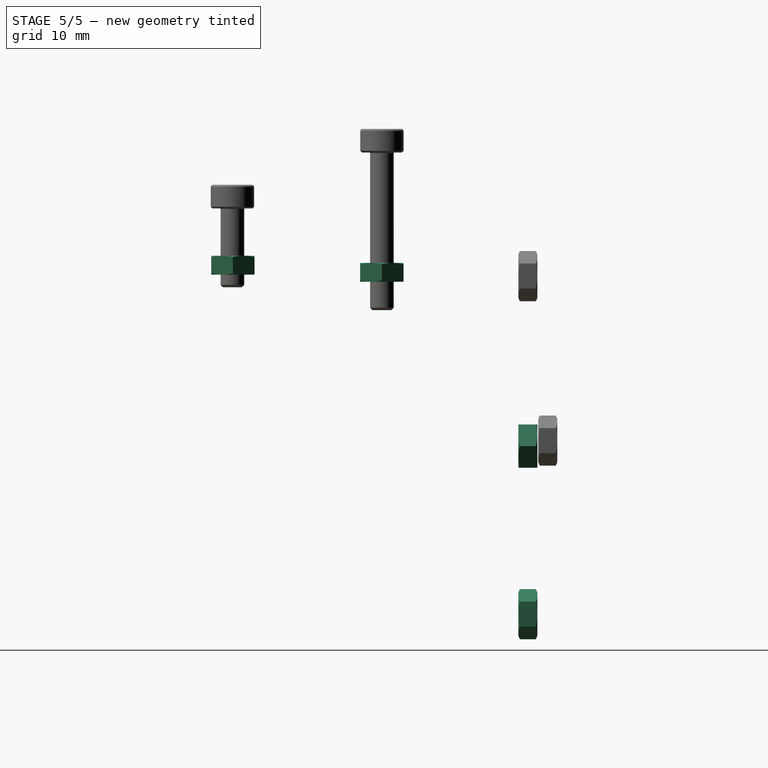
[diagram: stage 5 of 5 — right view after this stage's code; geometry added in this stage tinted green]
FEATURE [Part::FeaturePython] Nut  label="M3-Nut260"  # WARN: FeaturePython — macro-defined, semantics opaque (R4)
  BaseObject = -> Body001 [Pocket006.Edge326]
  Diameter = 4
  Invert = true
  LeftHanded = false
  MatchOuter = false
  Offset = -5
  OffsetAngle = 0
  Placement = pos=(22.0216,22.4238,18.7082) rot=(-1,0,0;3.14159rad)
  Thread = false
  Type = 31
FEATURE [Part::FeaturePython] Nut001  label="M3-Nut"  # WARN: FeaturePython — macro-defined, semantics opaque (R4)
  BaseObject = -> Body001 [Pocket006.Edge304]
  Diameter = 4
  Invert = true
  LeftHanded = false
  MatchOuter = false
  Offset = -5
  OffsetAngle = 0
  Placement = pos=(-21.487,22.4193,18.7082) rot=(-1,0,0;3.14159rad)
  Thread = false
  Type = 31
FEATURE [Part::FeaturePython] Nut002  label="M3-Nut261"  # WARN: FeaturePython — macro-defined, semantics opaque (R4)
  BaseObject = -> Body001 [Pocket006.Edge302]
  Diameter = 4
  Invert = true
  LeftHanded = false
  MatchOuter = false
  OffsetAngle = 0
  Placement = pos=(0.127823,3.52295,19.6133) rot=(-1,0,0;3.14159rad)
  Thread = false
  Type = 31
FEATURE [Part::FeaturePython] Nut003  label="M3-Nut262"  # WARN: FeaturePython — macro-defined, semantics opaque (R4)
  BaseObject = -> Body001 [Pocket006.Edge968]
  Diameter = 4
  Invert = false
  LeftHanded = false
  MatchOuter = false
  OffsetAngle = 0
  Placement = pos=(-11.5007,42.143,-4.53603) rot=(1,0,0;1.5708rad)
  Thread = false
  Type = 31
FEATURE [Part::FeaturePython] Nut004  label="M3-Nut263"  # WARN: FeaturePython — macro-defined, semantics opaque (R4)
  BaseObject = -> Body001 [Pocket006.Edge970]
  Diameter = 4
  Invert = false
  LeftHanded = false
  MatchOuter = false
  OffsetAngle = 0
  Placement = pos=(9.51776,42.143,-4.53603) rot=(1,0,0;1.5708rad)
  Thread = false
  Type = 31
FEATURE [Part::FeaturePython] Nut005  label="M3-Nut264"  # WARN: FeaturePython — macro-defined, semantics opaque (R4)
  BaseObject = -> Body001 [Pocket006.Edge972]
  Diameter = 4
  Invert = false
  LeftHanded = false
  MatchOuter = false
  OffsetAngle = 30
  Placement = pos=(17.8613,42.143,-25.853) rot=(0.935113,-0.250563,0.250563;1.63783rad)
  Thread = false
  Type = 31
FEATURE [Part::FeaturePython] Nut006  label="M3-Nut265"  # WARN: FeaturePython — macro-defined, semantics opaque (R4)
  BaseObject = -> Body001 [Pocket006.Edge973]
  Diameter = 4
  Invert = false
  LeftHanded = false
  MatchOuter = false
  OffsetAngle = 30
  Placement = pos=(-19.941,42.143,-25.853) rot=(0.935113,-0.250563,0.250563;1.63783rad)
  Thread = false
  Type = 31
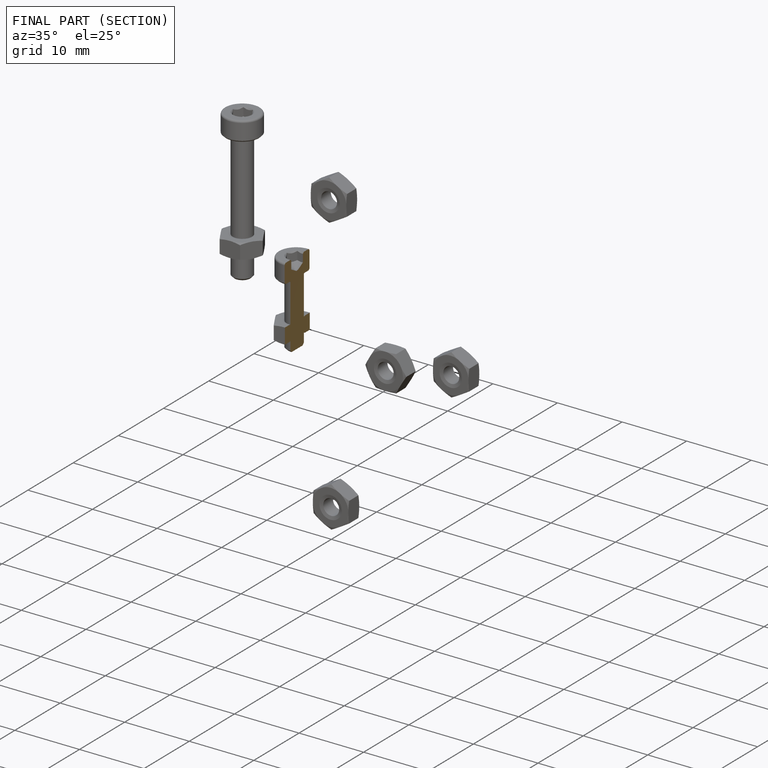
[diagram: finished part — half-section view (interior)]
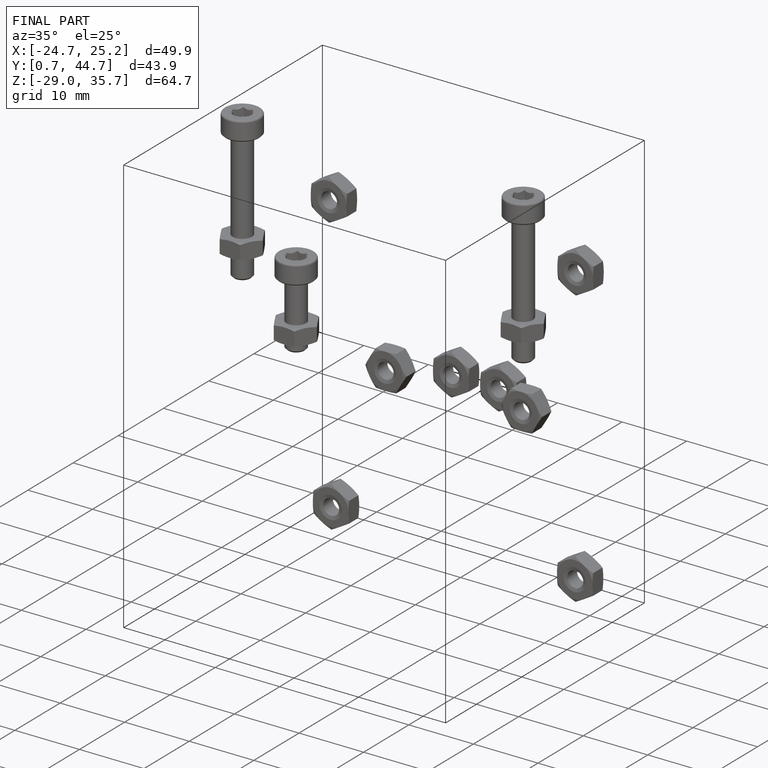
[diagram: finished part — iso view with bounding-box wireframe]
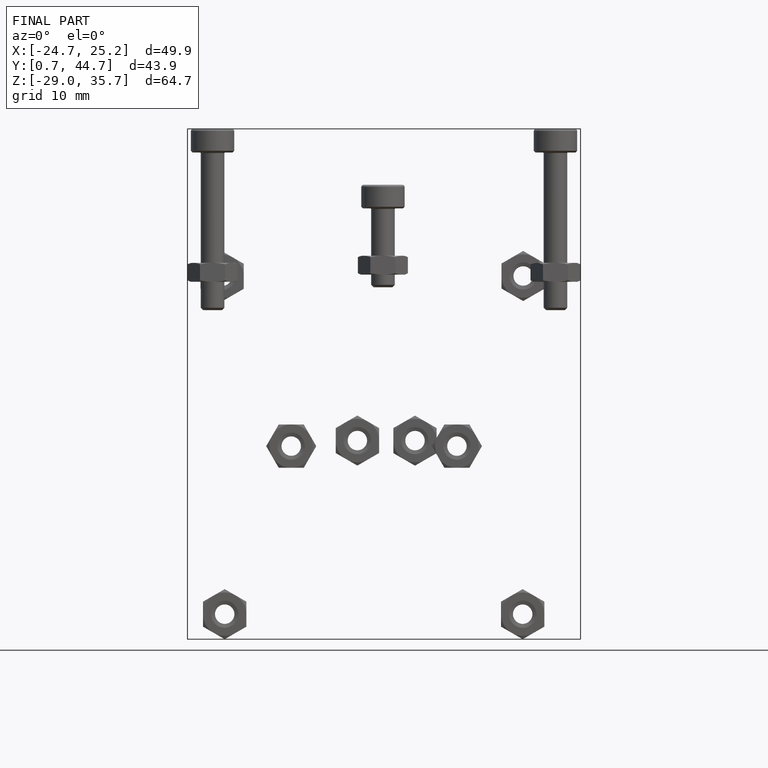
[diagram: finished part — front view with bounding-box wireframe]
